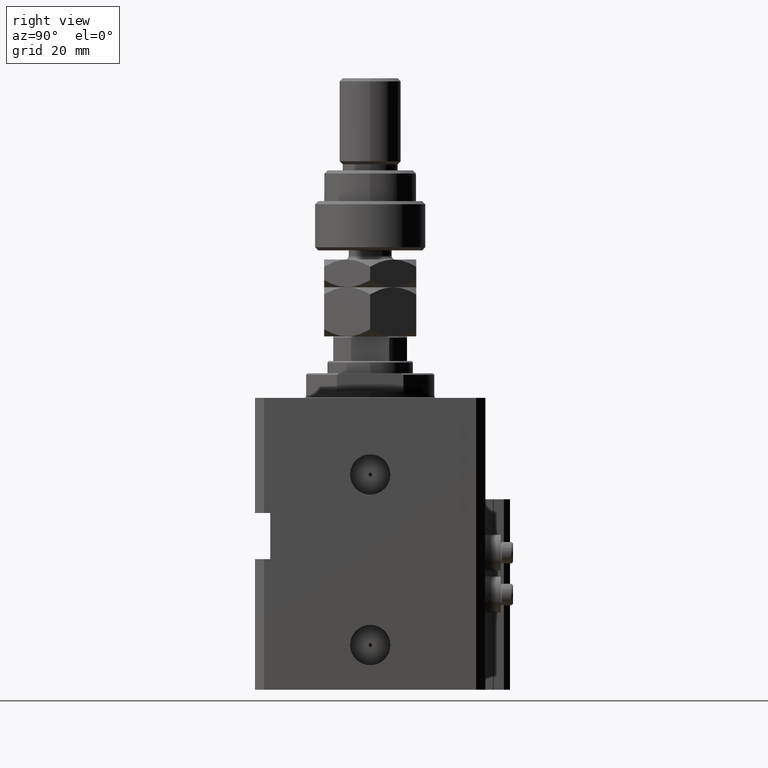
[diagram: clean part render]
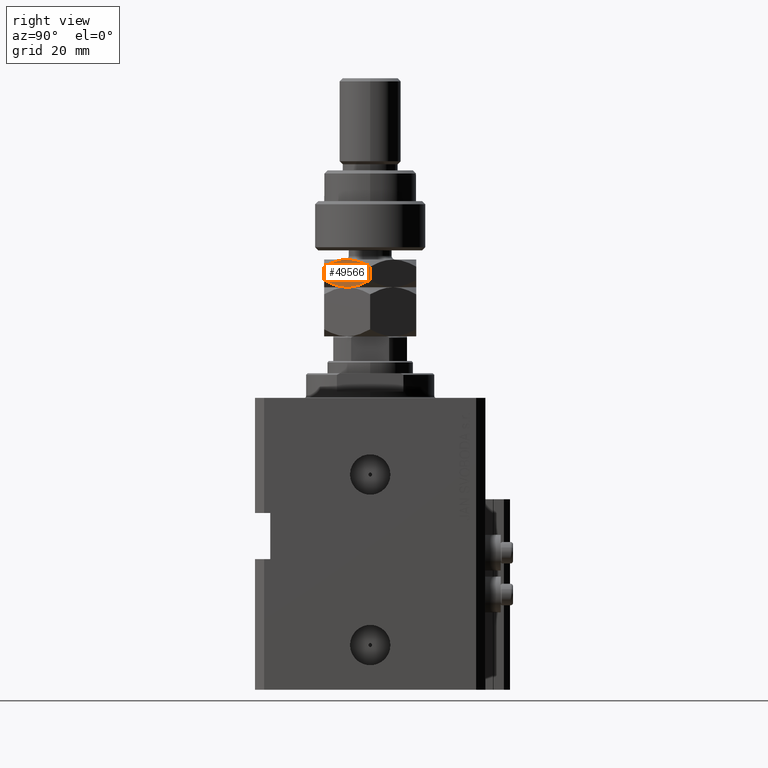
[diagram: same view with one face highlighted and labeled with its STEP entity id]
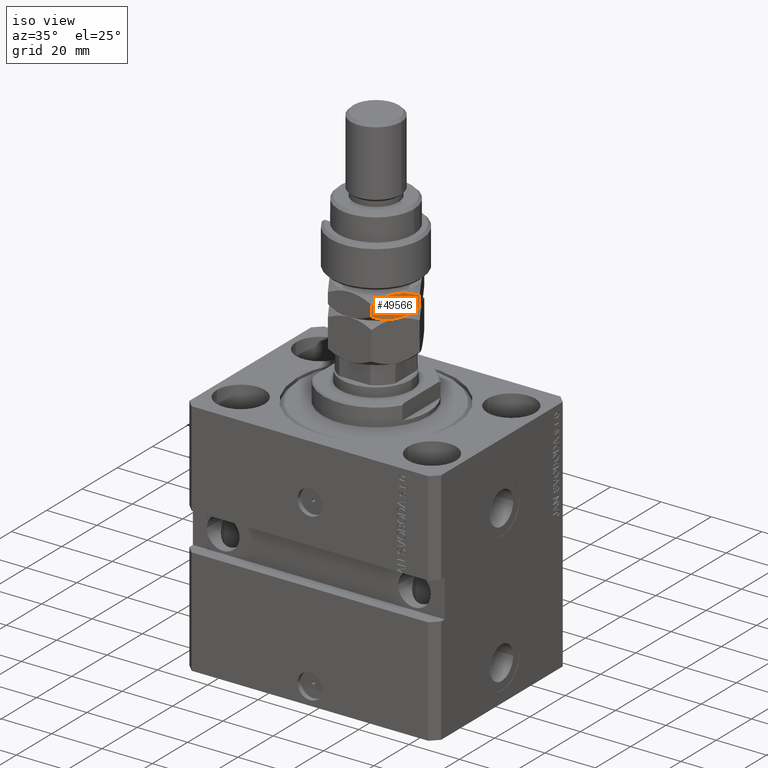
[diagram: same view with one face highlighted and labeled with its STEP entity id]
A machine part, right view. The second image highlights one B-rep face of the part: STEP entity #49566.
A second angle (iso view) of the same face is appended — the face is thin or edge-on in the first view.
In plain terms, the highlighted planar face has unit normal (-0.866, 0.5, 0).
Its self-contained STEP definition (entity closure, byte-faithful):
#141 = CARTESIAN_POINT ( 'NONE',  ( 14.99999999999999645, 0.000000000000000000, 16.00000000000000000 ) ) ;
#2258 = CARTESIAN_POINT ( 'NONE',  ( 14.99999999999999645, 0.000000000000000000, 16.00000000000000000 ) ) ;
#3829 = DIRECTION ( 'NONE',  ( -0.000000000000000000, -0.000000000000000000, -1.000000000000000000 ) ) ;
#4447 = CARTESIAN_POINT ( 'NONE',  ( 15.00000000000000000, 5.174827754835041205, 16.86398255753356423 ) ) ;
#5330 = CARTESIAN_POINT ( 'NONE',  ( 14.99999999999999822, -7.988341278889598662, 23.01544830378863438 ) ) ;
#5558 = VERTEX_POINT ( 'NONE', #31209 ) ;
#5570 = CARTESIAN_POINT ( 'NONE',  ( 15.00000000000000000, -3.004852722955709154, 24.76509796378016404 ) ) ;
#6832 = CARTESIAN_POINT ( 'NONE',  ( 14.99999999999999822, 0.3804688789667641791, 25.00000000000000000 ) ) ;
#6990 = DIRECTION ( 'NONE',  ( -0.000000000000000000, -0.000000000000000000, -1.000000000000000000 ) ) ;
#7858 = CARTESIAN_POINT ( 'NONE',  ( 14.99999999999999822, 7.301375305910570823, 23.32983397160520411 ) ) ;
#8070 = CARTESIAN_POINT ( 'NONE',  ( 14.99999999999999467, 5.891098461327064051, 17.11186337375562871 ) ) ;
#9461 = EDGE_CURVE ( 'NONE', #34294, #49904, #15631, .T. ) ;
#9987 = CARTESIAN_POINT ( 'NONE',  ( 14.99999999999999822, -0.7628644205843061465, 16.01467181866700784 ) ) ;
#10813 = VERTEX_POINT ( 'NONE', #19217 ) ;
#10826 = EDGE_CURVE ( 'NONE', #5558, #14759, #21128, .T. ) ;
#10975 = CARTESIAN_POINT ( 'NONE',  ( 14.99999999999999645, -1.524122972781246865, 25.00000000000000000 ) ) ;
#11068 = LINE ( 'NONE', #50281, #17809 ) ;
#11182 = CARTESIAN_POINT ( 'NONE',  ( 14.99999999999999467, 3.004852722955711819, 16.23490203621984307 ) ) ;
#11256 = EDGE_LOOP ( 'NONE', ( #35834, #40350, #18752, #29925, #25259, #43959 ) ) ;
#11432 = CARTESIAN_POINT ( 'NONE',  ( 14.99999999999999645, 7.303107243978802288, 17.67096152142570986 ) ) ;
#11474 = CARTESIAN_POINT ( 'NONE',  ( 14.99999999999999822, 5.180699559534207133, 24.14562739175687867 ) ) ;
#13322 = CARTESIAN_POINT ( 'NONE',  ( 14.99999999999999822, -5.891098461327062275, 23.88813662624436773 ) ) ;
#13698 = CARTESIAN_POINT ( 'NONE',  ( 14.99999999999999645, 8.660254037844387298, 18.32050807568876394 ) ) ;
#13868 = CARTESIAN_POINT ( 'NONE',  ( 15.00000000000000000, -8.660254037844381969, 18.32050807568876394 ) ) ;
#14115 = CARTESIAN_POINT ( 'NONE',  ( 15.00000000000000000, -3.737365789271273275, 16.44310156405335732 ) ) ;
#14291 = DIRECTION ( 'NONE',  ( -1.000000000000000000, -1.001543065824773222E-16, 0.000000000000000000 ) ) ;
#14338 = CARTESIAN_POINT ( 'NONE',  ( 14.99999999999999645, 1.502314598737159426E-15, 25.00000000000000000 ) ) ;
#14378 = CARTESIAN_POINT ( 'NONE',  ( 15.00000000000000000, -7.301375305910570823, 17.67016602839480299 ) ) ;
#14759 = VERTEX_POINT ( 'NONE', #35213 ) ;
#15281 = CARTESIAN_POINT ( 'NONE',  ( 15.00000000000000000, -8.660254037844381969, 18.32050807568876394 ) ) ;
#15353 = CARTESIAN_POINT ( 'NONE',  ( 14.99999999999999467, 1.891887532498635061, 24.88562366702208095 ) ) ;
#15631 = B_SPLINE_CURVE_WITH_KNOTS ( 'NONE', 3,
 ( #2258, #38101, #9987, #49212, #18509, #33991, #14115, #25462, #49721, #14378, #45602, #13868 ),
 .UNSPECIFIED., .F., .F.,
 ( 4, 2, 2, 2, 2, 4 ),
 ( 0.03191542946226437472, 0.03304303448889991252, 0.03417063951553545031, 0.03642584956880652591, 0.03868105962207760151, 0.04093626967534867711 ),
 .UNSPECIFIED. ) ;
#15856 = CARTESIAN_POINT ( 'NONE',  ( 14.99999999999999822, 8.660254037844385522, 22.67949192431123961 ) ) ;
#16334 = CARTESIAN_POINT ( 'NONE',  ( 14.99999999999999822, 4.814853579356897839, 16.74999630955690577 ) ) ;
#17219 = CARTESIAN_POINT ( 'NONE',  ( 14.99999999999999645, -7.303107243978799623, 23.32903847857429014 ) ) ;
#17558 = EDGE_CURVE ( 'NONE', #10813, #5558, #20136, .T. ) ;
#17809 = VECTOR ( 'NONE', #3829, 1000.000000000000000 ) ;
#18509 = CARTESIAN_POINT ( 'NONE',  ( 15.00000000000000000, -1.891887532498635061, 16.11437633297792615 ) ) ;
#18752 = ORIENTED_EDGE ( 'NONE', *, *, #10826, .F. ) ;
#19217 = CARTESIAN_POINT ( 'NONE',  ( 14.99999999999999822, -8.660254037844383745, 22.67949192431123961 ) ) ;
#19721 = CARTESIAN_POINT ( 'NONE',  ( 14.99999999999999645, 7.988323794068006301, 23.01545704619942256 ) ) ;
#20136 = B_SPLINE_CURVE_WITH_KNOTS ( 'NONE', 3,
 ( #48925, #5330, #17219, #21080, #13322, #25182, #40944, #5570, #10975, #14338 ),
 .UNSPECIFIED., .F., .F.,
 ( 4, 2, 2, 2, 4 ),
 ( 0.02288126756189531180, 0.02513980803698757580, 0.02626907827453370953, 0.02739834851207984326, 0.03191542946226437472 ),
 .UNSPECIFIED. ) ;
#21080 = CARTESIAN_POINT ( 'NONE',  ( 14.99999999999999112, -6.248143622294143107, 23.75390217982290864 ) ) ;
#21128 = B_SPLINE_CURVE_WITH_KNOTS ( 'NONE', 3,
 ( #39336, #6832, #34969, #43226, #15353, #34460, #46828, #11474, #23079, #7858, #19721, #15856 ),
 .UNSPECIFIED., .F., .F.,
 ( 4, 2, 2, 2, 2, 4 ),
 ( 0.03191542946226437472, 0.03304303448889991252, 0.03417063951553545031, 0.03642584956880652591, 0.03868105962207760845, 0.04093626967534868405 ),
 .UNSPECIFIED. ) ;
#22801 = DIRECTION ( 'NONE',  ( 1.001543065824773222E-16, -1.000000000000000000, 0.000000000000000000 ) ) ;
#23079 = CARTESIAN_POINT ( 'NONE',  ( 14.99999999999999645, 5.892768039091680343, 23.89692361009772625 ) ) ;
#24045 = CARTESIAN_POINT ( 'NONE',  ( 14.99999999999999645, 8.660254037844387298, 18.32050807568876394 ) ) ;
#24354 = EDGE_CURVE ( 'NONE', #50967, #34294, #39915, .T. ) ;
#25182 = CARTESIAN_POINT ( 'NONE',  ( 15.00000000000000000, -5.174827754835039428, 24.13601744246643932 ) ) ;
#25259 = ORIENTED_EDGE ( 'NONE', *, *, #33844, .T. ) ;
#25462 = CARTESIAN_POINT ( 'NONE',  ( 14.99999999999999645, -5.180699559534208021, 16.85437260824312844 ) ) ;
#26910 = CARTESIAN_POINT ( 'NONE',  ( 14.99999999999999645, 1.524122972781247309, 15.99999999999999645 ) ) ;
#29925 = ORIENTED_EDGE ( 'NONE', *, *, #17558, .F. ) ;
#30282 = FACE_OUTER_BOUND ( 'NONE', #11256, .T. ) ;
#31209 = CARTESIAN_POINT ( 'NONE',  ( 14.99999999999999645, 1.502314598737159426E-15, 25.00000000000000000 ) ) ;
#31288 = CARTESIAN_POINT ( 'NONE',  ( 14.99999999999999112, 6.248143622294145771, 17.24609782017707715 ) ) ;
#32580 = VECTOR ( 'NONE', #6990, 1000.000000000000000 ) ;
#32872 = EDGE_CURVE ( 'NONE', #14759, #50967, #35120, .T. ) ;
#33844 = EDGE_CURVE ( 'NONE', #10813, #49904, #11068, .T. ) ;
#33991 = CARTESIAN_POINT ( 'NONE',  ( 15.00000000000000178, -3.006083412830564239, 16.28061096559729393 ) ) ;
#34174 = CARTESIAN_POINT ( 'NONE',  ( 14.99999999999999822, -8.660254037844381969, 25.00000000000000000 ) ) ;
#34294 = VERTEX_POINT ( 'NONE', #141 ) ;
#34460 = CARTESIAN_POINT ( 'NONE',  ( 14.99999999999999822, 3.006083412830564683, 24.71938903440270607 ) ) ;
#34969 = CARTESIAN_POINT ( 'NONE',  ( 14.99999999999999645, 0.7628644205843058135, 24.98532818133299571 ) ) ;
#35120 = LINE ( 'NONE', #50843, #32580 ) ;
#35213 = CARTESIAN_POINT ( 'NONE',  ( 14.99999999999999822, 8.660254037844385522, 22.67949192431123961 ) ) ;
#35834 = ORIENTED_EDGE ( 'NONE', *, *, #24354, .F. ) ;
#38101 = CARTESIAN_POINT ( 'NONE',  ( 15.00000000000000178, -0.3804688789667639015, 16.00000000000000000 ) ) ;
#39336 = CARTESIAN_POINT ( 'NONE',  ( 14.99999999999999645, 1.502314598737159426E-15, 25.00000000000000000 ) ) ;
#39915 = B_SPLINE_CURVE_WITH_KNOTS ( 'NONE', 3,
 ( #24045, #43686, #11432, #31288, #8070, #4447, #16334, #11182, #26910, #42671 ),
 .UNSPECIFIED., .F., .F.,
 ( 4, 2, 2, 2, 4 ),
 ( 0.02288126756189531180, 0.02513980803698757580, 0.02626907827453370953, 0.02739834851207984326, 0.03191542946226437472 ),
 .UNSPECIFIED. ) ;
#40350 = ORIENTED_EDGE ( 'NONE', *, *, #32872, .F. ) ;
#40944 = CARTESIAN_POINT ( 'NONE',  ( 15.00000000000000178, -4.814853579356896063, 24.25000369044311199 ) ) ;
#42671 = CARTESIAN_POINT ( 'NONE',  ( 14.99999999999999645, 0.000000000000000000, 16.00000000000000000 ) ) ;
#43226 = CARTESIAN_POINT ( 'NONE',  ( 14.99999999999999467, 1.517610682399677557, 24.92812055908709112 ) ) ;
#43686 = CARTESIAN_POINT ( 'NONE',  ( 14.99999999999999645, 7.988341278889603991, 17.98455169621137983 ) ) ;
#43959 = ORIENTED_EDGE ( 'NONE', *, *, #9461, .F. ) ;
#45602 = CARTESIAN_POINT ( 'NONE',  ( 15.00000000000000000, -7.988323794068004524, 17.98454295380057744 ) ) ;
#46276 = PLANE ( 'NONE',  #50536 ) ;
#46828 = CARTESIAN_POINT ( 'NONE',  ( 14.99999999999999645, 3.737365789271271943, 24.55689843594664268 ) ) ;
#48925 = CARTESIAN_POINT ( 'NONE',  ( 14.99999999999999822, -8.660254037844383745, 22.67949192431123961 ) ) ;
#49212 = CARTESIAN_POINT ( 'NONE',  ( 14.99999999999999822, -1.517610682399678002, 16.07187944091290888 ) ) ;
#49566 = ADVANCED_FACE ( 'NONE', ( #30282 ), #46276, .F. ) ;
#49721 = CARTESIAN_POINT ( 'NONE',  ( 15.00000000000000178, -5.892768039091683008, 17.10307638990227730 ) ) ;
#49904 = VERTEX_POINT ( 'NONE', #15281 ) ;
#50281 = CARTESIAN_POINT ( 'NONE',  ( 14.99999999999999822, -8.660254037844381969, 25.00000000000000000 ) ) ;
#50536 = AXIS2_PLACEMENT_3D ( 'NONE', #34174, #14291, #22801 ) ;
#50843 = CARTESIAN_POINT ( 'NONE',  ( 14.99999999999999645, 8.660254037844385522, 25.00000000000000000 ) ) ;
#50967 = VERTEX_POINT ( 'NONE', #13698 ) ;